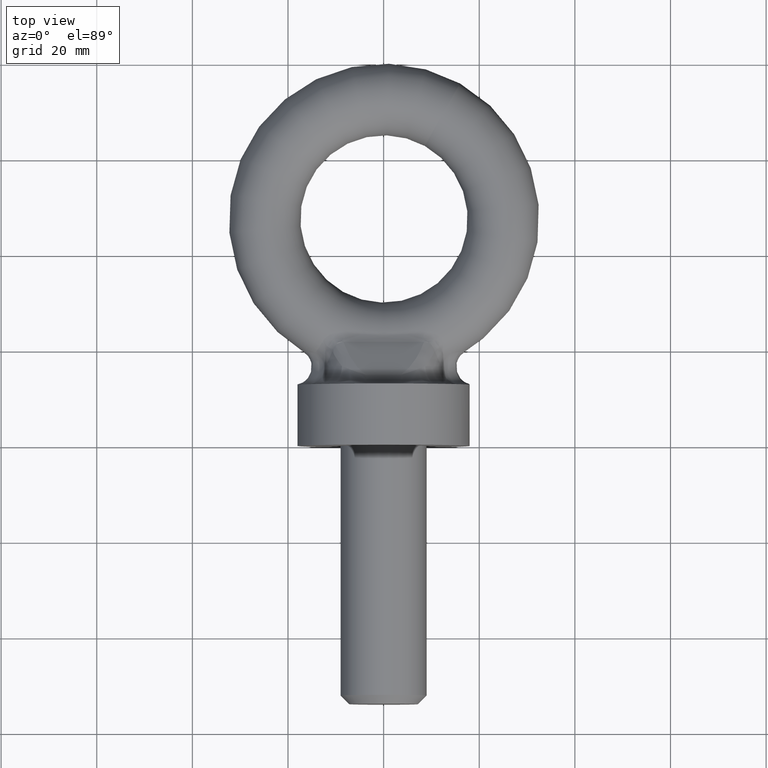
[diagram: clean part render]
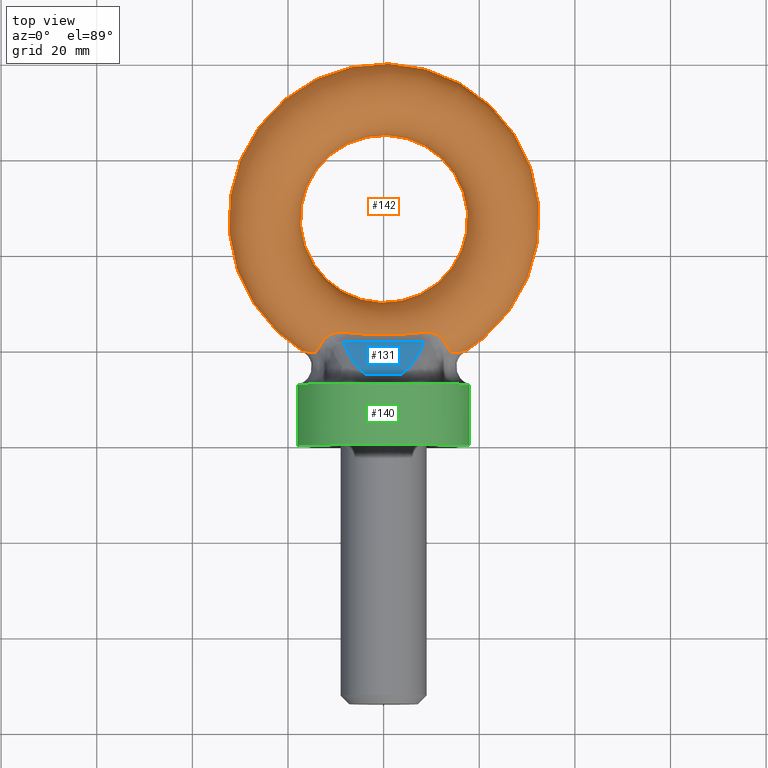
[diagram: same view with three faces highlighted in distinct colors, each labeled with its STEP entity id]
A machine part, top view with three faces highlighted in distinct colors.
Their STEP definitions:

[orange] entity #142 — the highlighted toroidal blend (fillet) surface has major radius 25 mm and minor (blend) radius 7.5 mm.
#75=TOROIDAL_SURFACE('',#709,25.,7.5);
#142=ADVANCED_FACE('',(#189),#75,.T.);
#189=FACE_OUTER_BOUND('',#235,.T.);
#235=EDGE_LOOP('',(#376,#377,#378,#379,#380,#381,#382,#383,#384,#385,#386,
#387));
#275=B_SPLINE_CURVE_WITH_KNOTS('',3,(#937,#938,#939,#940),.UNSPECIFIED.,
 .F.,.F.,(4,4),(0.,1.),.UNSPECIFIED.);
#278=B_SPLINE_CURVE_WITH_KNOTS('',3,(#977,#978,#979,#980),.UNSPECIFIED.,
 .F.,.F.,(4,4),(0.,1.),.UNSPECIFIED.);
#296=B_SPLINE_CURVE_WITH_KNOTS('',3,(#1230,#1231,#1232,#1233,#1234,#1235,
#1236,#1237,#1238,#1239),.UNSPECIFIED.,.F.,.F.,(4,2,2,2,4),(0.,0.25,0.5,
0.75,1.),.UNSPECIFIED.);
#297=B_SPLINE_CURVE_WITH_KNOTS('',3,(#1241,#1242,#1243,#1244),
 .UNSPECIFIED.,.F.,.F.,(4,4),(0.,1.),.UNSPECIFIED.);
#298=B_SPLINE_CURVE_WITH_KNOTS('',3,(#1246,#1247,#1248,#1249,#1250,#1251),
 .UNSPECIFIED.,.F.,.F.,(4,2,4),(0.,0.5,1.),.UNSPECIFIED.);
#299=B_SPLINE_CURVE_WITH_KNOTS('',3,(#1253,#1254,#1255,#1256,#1257,#1258),
 .UNSPECIFIED.,.F.,.F.,(4,2,4),(0.,0.5,1.),.UNSPECIFIED.);
#300=B_SPLINE_CURVE_WITH_KNOTS('',3,(#1260,#1261,#1262,#1263,#1264,#1265),
 .UNSPECIFIED.,.F.,.F.,(4,2,4),(0.,0.5,1.),.UNSPECIFIED.);
#301=B_SPLINE_CURVE_WITH_KNOTS('',3,(#1266,#1267,#1268,#1269,#1270,#1271,
#1272,#1273,#1274,#1275),.UNSPECIFIED.,.F.,.F.,(4,2,2,2,4),(0.,0.25,0.5,
0.75,1.),.UNSPECIFIED.);
#302=B_SPLINE_CURVE_WITH_KNOTS('',3,(#1277,#1278,#1279,#1280),
 .UNSPECIFIED.,.F.,.F.,(4,4),(0.,1.),.UNSPECIFIED.);
#303=B_SPLINE_CURVE_WITH_KNOTS('',3,(#1282,#1283,#1284,#1285,#1286,#1287),
 .UNSPECIFIED.,.F.,.F.,(4,2,4),(0.,0.5,1.),.UNSPECIFIED.);
#304=B_SPLINE_CURVE_WITH_KNOTS('',3,(#1289,#1290,#1291,#1292,#1293,#1294),
 .UNSPECIFIED.,.F.,.F.,(4,2,4),(0.,0.5,1.),.UNSPECIFIED.);
#305=B_SPLINE_CURVE_WITH_KNOTS('',3,(#1296,#1297,#1298,#1299,#1300,#1301),
 .UNSPECIFIED.,.F.,.F.,(4,2,4),(0.,0.5,1.),.UNSPECIFIED.);
#376=ORIENTED_EDGE('',*,*,#557,.T.);
#377=ORIENTED_EDGE('',*,*,#594,.T.);
#378=ORIENTED_EDGE('',*,*,#595,.T.);
#379=ORIENTED_EDGE('',*,*,#596,.T.);
#380=ORIENTED_EDGE('',*,*,#597,.T.);
#381=ORIENTED_EDGE('',*,*,#598,.T.);
#382=ORIENTED_EDGE('',*,*,#548,.T.);
#383=ORIENTED_EDGE('',*,*,#599,.T.);
#384=ORIENTED_EDGE('',*,*,#600,.T.);
#385=ORIENTED_EDGE('',*,*,#601,.T.);
#386=ORIENTED_EDGE('',*,*,#602,.T.);
#387=ORIENTED_EDGE('',*,*,#603,.T.);
#496=VERTEX_POINT('',#936);
#497=VERTEX_POINT('',#941);
#504=VERTEX_POINT('',#976);
#505=VERTEX_POINT('',#981);
#530=VERTEX_POINT('',#1240);
#531=VERTEX_POINT('',#1245);
#532=VERTEX_POINT('',#1252);
#533=VERTEX_POINT('',#1259);
#534=VERTEX_POINT('',#1276);
#535=VERTEX_POINT('',#1281);
#536=VERTEX_POINT('',#1288);
#537=VERTEX_POINT('',#1295);
#548=EDGE_CURVE('',#497,#496,#275,.T.);
#557=EDGE_CURVE('',#505,#504,#278,.T.);
#594=EDGE_CURVE('',#504,#530,#296,.T.);
#595=EDGE_CURVE('',#530,#531,#297,.T.);
#596=EDGE_CURVE('',#531,#532,#298,.T.);
#597=EDGE_CURVE('',#532,#533,#299,.T.);
#598=EDGE_CURVE('',#533,#497,#300,.T.);
#599=EDGE_CURVE('',#496,#534,#301,.T.);
#600=EDGE_CURVE('',#534,#535,#302,.T.);
#601=EDGE_CURVE('',#535,#536,#303,.T.);
#602=EDGE_CURVE('',#536,#537,#304,.T.);
#603=EDGE_CURVE('',#537,#505,#305,.T.);
#709=AXIS2_PLACEMENT_3D('',#1302,#827,#828);
#827=DIRECTION('',(0.,0.,-1.));
#828=DIRECTION('',(-1.,0.,0.));
#936=CARTESIAN_POINT('',(14.2844779945792,19.4307956329052,3.81541958967108));
#937=CARTESIAN_POINT('',(12.9124831563951,21.4602271201458,6.32630808973286));
#938=CARTESIAN_POINT('',(13.3524611189739,20.5523305189353,5.68389553624508));
#939=CARTESIAN_POINT('',(13.8835974051527,19.8942426665164,4.82152624301047));
#940=CARTESIAN_POINT('',(14.2844779945792,19.4307956329052,3.81541958967108));
#941=CARTESIAN_POINT('',(12.9124831563951,21.4602271201458,6.32630808973286));
#976=CARTESIAN_POINT('',(-14.3164547703476,19.4533788557953,-3.69361344276825));
#977=CARTESIAN_POINT('',(-12.9169826047984,21.5062530477916,-6.30373539051658));
#978=CARTESIAN_POINT('',(-13.3695579928663,20.5780350924614,-5.63807225576809));
#979=CARTESIAN_POINT('',(-13.9157287816521,19.9121693667427,-4.73833900966072));
#980=CARTESIAN_POINT('',(-14.3164547703476,19.4533788557953,-3.69361344276825));
#981=CARTESIAN_POINT('',(-12.9169826047984,21.5062530477916,-6.30373539051658));
#1230=CARTESIAN_POINT('',(-14.3164547703476,19.4533788557953,-3.69361344276825));
#1231=CARTESIAN_POINT('',(-14.9770910217811,19.5284716523958,-3.27841581836608));
#1232=CARTESIAN_POINT('',(-15.5814992215021,19.6000227675647,-2.78497423725932));
#1233=CARTESIAN_POINT('',(-16.5245769847375,19.7133477607623,-1.54022728339233));
#1234=CARTESIAN_POINT('',(-16.8363747049338,19.751748469735,-0.779755354642313));
#1235=CARTESIAN_POINT('',(-16.8359772016771,19.7516997813474,0.78134438192251));
#1236=CARTESIAN_POINT('',(-16.5214804065911,19.7129722736515,1.54532480662805));
#1237=CARTESIAN_POINT('',(-15.5800931065261,19.5998572045358,2.78581486874983));
#1238=CARTESIAN_POINT('',(-14.9765162759962,19.5284063225441,3.27877703542616));
#1239=CARTESIAN_POINT('',(-14.3164547703475,19.4533788557953,3.69361344276825));
#1240=CARTESIAN_POINT('',(-14.3164547703476,19.4533788557953,3.69361344276826));
#1241=CARTESIAN_POINT('',(-14.3164547703476,19.4533788557953,3.69361344276826));
#1242=CARTESIAN_POINT('',(-13.9158756577421,19.9120012085541,4.73795609163027));
#1243=CARTESIAN_POINT('',(-13.3693829949203,20.5783940077711,5.6383296486453));
#1244=CARTESIAN_POINT('',(-12.9169826047984,21.5062530477916,6.30373539051657));
#1245=CARTESIAN_POINT('',(-12.9169826047985,21.5062530477916,6.30373539051657));
#1246=CARTESIAN_POINT('',(-12.9169826047985,21.5062530477916,6.30373539051657));
#1247=CARTESIAN_POINT('',(-12.5725463977402,22.2126809276246,6.81034377302302));
#1248=CARTESIAN_POINT('',(-11.9132771718719,22.8552487041556,7.14083715556636));
#1249=CARTESIAN_POINT('',(-10.2735882184928,23.6442438871803,7.46775666687114));
#1250=CARTESIAN_POINT('',(-9.31048815764715,23.7659476705872,7.48539696504214));
#1251=CARTESIAN_POINT('',(-8.38510119277453,23.6510275025781,7.49367330028015));
#1252=CARTESIAN_POINT('',(-8.38510119277454,23.6510275025781,7.49367330028015));
#1253=CARTESIAN_POINT('',(-8.38510119277454,23.6510275025781,7.49367330028015));
#1254=CARTESIAN_POINT('',(-5.60035123881116,23.3052003570476,7.51857912351723));
#1255=CARTESIAN_POINT('',(-2.79905569754483,23.2226231171116,7.46601996878651));
#1256=CARTESIAN_POINT('',(2.80489049978228,23.2187343319262,7.46459502208918));
#1257=CARTESIAN_POINT('',(5.6032510788447,23.2954809726312,7.51684678932469));
#1258=CARTESIAN_POINT('',(8.39048070973274,23.6312030795749,7.49503187035418));
#1259=CARTESIAN_POINT('',(8.39048070973273,23.6312030795749,7.49503187035418));
#1260=CARTESIAN_POINT('',(8.39048070973274,23.6312030795749,7.49503187035418));
#1261=CARTESIAN_POINT('',(9.31621626315297,23.7427080259283,7.48778637975584));
#1262=CARTESIAN_POINT('',(10.2651390365959,23.6202819341237,7.47454486601026));
#1263=CARTESIAN_POINT('',(11.9171704312405,22.8145690200527,7.15299193428688));
#1264=CARTESIAN_POINT('',(12.5681661615642,22.1707268631642,6.82904590542282));
#1265=CARTESIAN_POINT('',(12.9124831563951,21.4602271201458,6.32630808973286));
#1266=CARTESIAN_POINT('',(14.2844779945792,19.4307956329052,3.81541958967108));
#1267=CARTESIAN_POINT('',(14.9878531127039,19.5101368833662,3.39786761964806));
#1268=CARTESIAN_POINT('',(15.6419934770113,19.5872969384618,2.89060629714019));
#1269=CARTESIAN_POINT('',(16.6531449364535,19.708564179036,1.6222264543058));
#1270=CARTESIAN_POINT('',(17.0019847979307,19.7515221306119,0.823914164213799));
#1271=CARTESIAN_POINT('',(17.0052706692841,19.751924602173,-0.811374755077542));
#1272=CARTESIAN_POINT('',(16.6623813887975,19.7096803341514,-1.60844368029884));
#1273=CARTESIAN_POINT('',(15.6428941812807,19.5873966144049,-2.89165140435163));
#1274=CARTESIAN_POINT('',(14.9887472313145,19.5102377406283,-3.3973368346122));
#1275=CARTESIAN_POINT('',(14.2844779945792,19.4307956329052,-3.81541958967109));
#1276=CARTESIAN_POINT('',(14.2844779945792,19.4307956329052,-3.81541958967109));
#1277=CARTESIAN_POINT('',(14.2844779945792,19.4307956329052,-3.81541958967109));
#1278=CARTESIAN_POINT('',(13.8841546422066,19.8935984600707,-4.82012772204877));
#1279=CARTESIAN_POINT('',(13.3520186853441,20.5532434828174,-5.68454153432233));
#1280=CARTESIAN_POINT('',(12.9124831563951,21.4602271201458,-6.32630808973286));
#1281=CARTESIAN_POINT('',(12.9124831563951,21.4602271201458,-6.32630808973286));
#1282=CARTESIAN_POINT('',(12.9124831563951,21.4602271201458,-6.32630808973286));
#1283=CARTESIAN_POINT('',(12.5687848545581,22.1694501872529,-6.82814255075551));
#1284=CARTESIAN_POINT('',(11.9122431538569,22.8159779920513,-7.15339833798118));
#1285=CARTESIAN_POINT('',(10.2777594463349,23.6151162745061,-7.47263847016528));
#1286=CARTESIAN_POINT('',(9.31565538223899,23.7426404677623,-7.48779076962439));
#1287=CARTESIAN_POINT('',(8.39048070973273,23.6312030795749,-7.49503187035418));
#1288=CARTESIAN_POINT('',(8.39048070973273,23.6312030795749,-7.49503187035418));
#1289=CARTESIAN_POINT('',(8.39048070973273,23.6312030795749,-7.49503187035418));
#1290=CARTESIAN_POINT('',(5.60458012679811,23.2956410565993,-7.51683638721319));
#1291=CARTESIAN_POINT('',(2.80305497447992,23.2186919463708,-7.46457950003492));
#1292=CARTESIAN_POINT('',(-2.80084973667984,23.2226680496424,-7.46603642410946));
#1293=CARTESIAN_POINT('',(-5.59894177607363,23.305025321413,-7.51859172925576));
#1294=CARTESIAN_POINT('',(-8.38510119277454,23.6510275025781,-7.49367330028015));
#1295=CARTESIAN_POINT('',(-8.38510119277454,23.6510275025781,-7.49367330028015));
#1296=CARTESIAN_POINT('',(-8.38510119277454,23.6510275025781,-7.49367330028015));
#1297=CARTESIAN_POINT('',(-9.31101166029003,23.7660126823217,-7.48539228301879));
#1298=CARTESIAN_POINT('',(-10.2612579912938,23.6491620960058,-7.46964420810261));
#1299=CARTESIAN_POINT('',(-11.9177949377386,22.8540849649533,-7.14050456761327));
#1300=CARTESIAN_POINT('',(-12.5719433518577,22.2139177558543,-6.81123075323262));
#1301=CARTESIAN_POINT('',(-12.9169826047984,21.5062530477916,-6.30373539051658));
#1302=CARTESIAN_POINT('',(0.0837289890841773,47.5,0.));

[blue] entity #131 — the highlighted planar face has unit normal (0, 0.4932, 0.8699).
#100=ELLIPSE('',#691,20.2741540468166,10.);
#101=ELLIPSE('',#692,20.2741540468166,10.);
#131=ADVANCED_FACE('',(#181),#169,.T.);
#169=PLANE('',#693);
#181=FACE_OUTER_BOUND('',#221,.T.);
#221=EDGE_LOOP('',(#334,#335,#336,#337));
#263=LINE('',#1012,#267);
#267=VECTOR('',#790,1.);
#280=B_SPLINE_CURVE_WITH_KNOTS('',3,(#1016,#1017,#1018,#1019,#1020,#1021),
 .UNSPECIFIED.,.F.,.F.,(4,2,4),(0.,0.5,1.),.UNSPECIFIED.);
#334=ORIENTED_EDGE('',*,*,#564,.T.);
#335=ORIENTED_EDGE('',*,*,#565,.T.);
#336=ORIENTED_EDGE('',*,*,#566,.T.);
#337=ORIENTED_EDGE('',*,*,#567,.T.);
#510=VERTEX_POINT('',#1010);
#511=VERTEX_POINT('',#1011);
#512=VERTEX_POINT('',#1013);
#513=VERTEX_POINT('',#1015);
#564=EDGE_CURVE('',#510,#511,#100,.T.);
#565=EDGE_CURVE('',#511,#512,#263,.T.);
#566=EDGE_CURVE('',#512,#513,#101,.T.);
#567=EDGE_CURVE('',#513,#510,#280,.T.);
#691=AXIS2_PLACEMENT_3D('',#1009,#788,#789);
#692=AXIS2_PLACEMENT_3D('',#1014,#791,#792);
#693=AXIS2_PLACEMENT_3D('',#1022,#793,#794);
#788=DIRECTION('',(0.,0.493238828949817,0.869893934693313));
#789=DIRECTION('',(-4.12667031236603E-18,0.869893934693313,-0.493238828949817));
#790=DIRECTION('',(1.,3.58976547520617E-18,-2.0354340323334E-18));
#791=DIRECTION('',(0.,0.493238828949817,0.869893934693313));
#792=DIRECTION('',(-4.12667031236603E-18,0.869893934693313,-0.493238828949817));
#793=DIRECTION('',(0.,0.493238828949817,0.869893934693313));
#794=DIRECTION('',(0.,-0.869893934693313,0.493238828949817));
#1009=CARTESIAN_POINT('',(-2.56489694966177E-17,31.1247430000772,2.60968180407994));
#1010=CARTESIAN_POINT('',(-8.43663335132715,21.6562627918896,7.9784076953203));
#1011=CARTESIAN_POINT('',(-3.64304812711346,14.7003543914346,11.9224794687742));
#1012=CARTESIAN_POINT('',(36.,14.7003543914382,11.9224794687722));
#1013=CARTESIAN_POINT('',(3.64304812711871,14.7003543914382,11.9224794687722));
#1014=CARTESIAN_POINT('',(-2.56489694966177E-17,31.1247430000772,2.60968180407994));
#1015=CARTESIAN_POINT('',(8.43533619844979,21.652668756512,7.98044555043135));
#1016=CARTESIAN_POINT('',(8.4353361984498,21.652668756512,7.98044555043135));
#1017=CARTESIAN_POINT('',(5.62332535027249,21.5967028933874,8.01217877179068));
#1018=CARTESIAN_POINT('',(2.81136871891982,21.7333342968206,7.93470735747283));
#1019=CARTESIAN_POINT('',(-2.81262261362832,21.7292655110484,7.93701440095191));
#1020=CARTESIAN_POINT('',(-5.62465623080321,21.5924161449255,8.01460940236185));
#1021=CARTESIAN_POINT('',(-8.43663335132713,21.6562627918893,7.97840769532053));
#1022=CARTESIAN_POINT('',(36.,12.8,13.));

[green] entity #140 — the highlighted cylindrical surface (bore or boss wall) has radius 18 mm, axis along (-0, 1, 0).
#84=FACE_BOUND('',#232,.T.);
#85=FACE_BOUND('',#233,.T.);
#93=CYLINDRICAL_SURFACE('',#705,18.);
#140=ADVANCED_FACE('',(#84,#85),#93,.T.);
#232=EDGE_LOOP('',(#363,#364,#365,#366));
#233=EDGE_LOOP('',(#367));
#290=B_SPLINE_CURVE_WITH_KNOTS('',3,(#1188,#1189,#1190,#1191,#1192,#1193),
 .UNSPECIFIED.,.F.,.F.,(4,2,4),(0.,0.5,1.),.UNSPECIFIED.);
#291=B_SPLINE_CURVE_WITH_KNOTS('',3,(#1197,#1198,#1199,#1200,#1201,#1202),
 .UNSPECIFIED.,.F.,.F.,(4,2,4),(0.,0.5,1.),.UNSPECIFIED.);
#363=ORIENTED_EDGE('',*,*,#538,.F.);
#364=ORIENTED_EDGE('',*,*,#584,.T.);
#365=ORIENTED_EDGE('',*,*,#585,.F.);
#366=ORIENTED_EDGE('',*,*,#586,.T.);
#367=ORIENTED_EDGE('',*,*,#583,.T.);
#486=VERTEX_POINT('',#901);
#487=VERTEX_POINT('',#902);
#521=VERTEX_POINT('',#1186);
#522=VERTEX_POINT('',#1194);
#523=VERTEX_POINT('',#1196);
#538=EDGE_CURVE('',#486,#487,#628,.T.);
#583=EDGE_CURVE('',#521,#521,#642,.T.);
#584=EDGE_CURVE('',#486,#522,#290,.T.);
#585=EDGE_CURVE('',#523,#522,#643,.T.);
#586=EDGE_CURVE('',#523,#487,#291,.T.);
#628=CIRCLE('',#671,18.);
#642=CIRCLE('',#702,18.);
#643=CIRCLE('',#704,18.);
#671=AXIS2_PLACEMENT_3D('',#900,#747,#748);
#702=AXIS2_PLACEMENT_3D('',#1185,#812,#813);
#704=AXIS2_PLACEMENT_3D('',#1195,#816,#817);
#705=AXIS2_PLACEMENT_3D('',#1203,#818,#819);
#747=DIRECTION('',(-3.58976547520617E-18,1.,0.));
#748=DIRECTION('',(-1.,0.,0.));
#812=DIRECTION('',(-3.58976547520617E-18,1.,0.));
#813=DIRECTION('',(-1.,-3.58976547520617E-18,0.));
#816=DIRECTION('',(-3.58976547520617E-18,1.,0.));
#817=DIRECTION('',(-1.,0.,0.));
#818=DIRECTION('',(-3.58976547520617E-18,1.,0.));
#819=DIRECTION('',(-1.,0.,0.));
#900=CARTESIAN_POINT('',(3.48207251094998E-17,12.8,0.));
#901=CARTESIAN_POINT('',(-17.6409051411949,12.8,3.57749434651733));
#902=CARTESIAN_POINT('',(17.5698556737493,12.8,3.91154337872134));
#1185=CARTESIAN_POINT('',(8.07697231921387E-17,0.,0.));
#1186=CARTESIAN_POINT('',(-18.,-6.4615778553711E-17,0.));
#1188=CARTESIAN_POINT('',(-17.6409051411949,12.8,3.57749434651733));
#1189=CARTESIAN_POINT('',(-17.8814390338363,12.8,2.39140286115699));
#1190=CARTESIAN_POINT('',(-17.9995665768791,12.8835910549611,1.20126228859958));
#1191=CARTESIAN_POINT('',(-18.0004310671036,12.8840654182694,-1.18823795595213));
#1192=CARTESIAN_POINT('',(-17.879775346079,12.7999999999996,-2.39960663594617));
#1193=CARTESIAN_POINT('',(-17.640905141192,12.8,-3.57749434653177));
#1194=CARTESIAN_POINT('',(-17.640905141192,12.8,-3.57749434653177));
#1195=CARTESIAN_POINT('',(3.48207251094998E-17,12.8,0.));
#1196=CARTESIAN_POINT('',(17.5698556737474,12.8,-3.91154337872978));
#1197=CARTESIAN_POINT('',(17.5698556737474,12.8,-3.91154337872978));
#1198=CARTESIAN_POINT('',(17.8577029048773,12.7999999999988,-2.61859228056736));
#1199=CARTESIAN_POINT('',(17.9993100571857,12.9234007494072,-1.31873374019245));
#1200=CARTESIAN_POINT('',(18.0006849802917,12.9243695120975,1.29983131695146));
#1201=CARTESIAN_POINT('',(17.8555354200757,12.7999999999994,2.62832818055339));
#1202=CARTESIAN_POINT('',(17.5698556737493,12.8,3.91154337872134));
#1203=CARTESIAN_POINT('',(2.74617058853272E-16,-54.,0.));